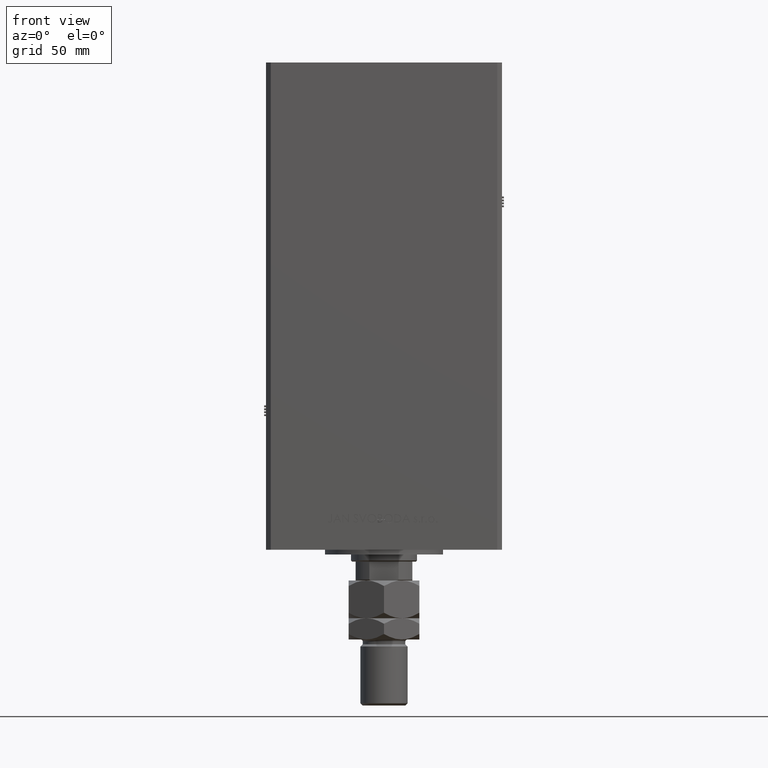
[diagram: clean part render]
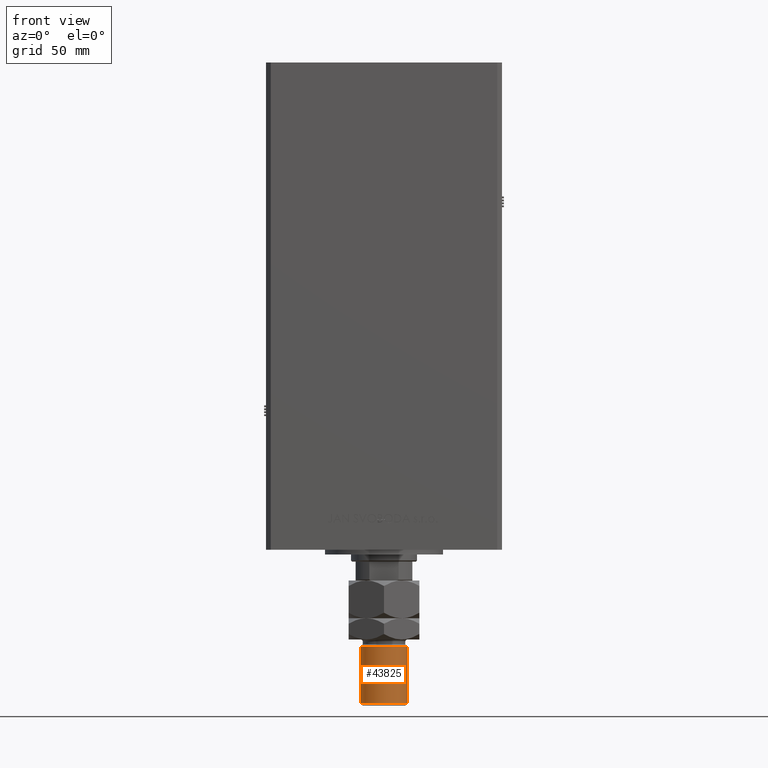
[diagram: same view with one face highlighted and labeled with its STEP entity id]
A machine part, front view. The second image highlights one B-rep face of the part: STEP entity #43825.
In plain terms, the highlighted cylindrical surface (edge-blend (fillet) strip) has radius 10 mm, axis along (0, -0, 1).
Its self-contained STEP definition (entity closure, byte-faithful):
#11 = VERTEX_POINT ( 'NONE', #38649 ) ;
#2349 = EDGE_LOOP ( 'NONE', ( #50576, #3099, #36775, #12514 ) ) ;
#2745 = CARTESIAN_POINT ( 'NONE',  ( -10.00000000000000000, 0.000000000000000000, 53.00000000000000711 ) ) ;
#3099 = ORIENTED_EDGE ( 'NONE', *, *, #49376, .T. ) ;
#3618 = DIRECTION ( 'NONE',  ( -0.000000000000000000, -0.000000000000000000, 1.000000000000000000 ) ) ;
#5961 = VERTEX_POINT ( 'NONE', #37063 ) ;
#6857 = CARTESIAN_POINT ( 'NONE',  ( 10.00000000000000000, 1.224646799147353059E-15, 52.00000000000004974 ) ) ;
#7308 = CIRCLE ( 'NONE', #42873, 10.00000000000000000 ) ;
#10063 = VERTEX_POINT ( 'NONE', #22826 ) ;
#10108 = CYLINDRICAL_SURFACE ( 'NONE', #25419, 10.00000000000000000 ) ;
#12514 = ORIENTED_EDGE ( 'NONE', *, *, #33720, .T. ) ;
#17098 = DIRECTION ( 'NONE',  ( -0.000000000000000000, -0.000000000000000000, -1.000000000000000000 ) ) ;
#18530 = CIRCLE ( 'NONE', #32415, 10.00000000000000000 ) ;
#20283 = VERTEX_POINT ( 'NONE', #6857 ) ;
#21615 = DIRECTION ( 'NONE',  ( -0.000000000000000000, -0.000000000000000000, -1.000000000000000000 ) ) ;
#22826 = CARTESIAN_POINT ( 'NONE',  ( 10.00000000000000000, 1.224646799147353059E-15, 28.00000000000002487 ) ) ;
#23172 = EDGE_CURVE ( 'NONE', #5961, #11, #31555, .T. ) ;
#24775 = DIRECTION ( 'NONE',  ( 0.000000000000000000, 0.000000000000000000, -1.000000000000000000 ) ) ;
#25419 = AXIS2_PLACEMENT_3D ( 'NONE', #45809, #21615, #35129 ) ;
#26087 = VECTOR ( 'NONE', #43508, 1000.000000000000000 ) ;
#31555 = LINE ( 'NONE', #2745, #26087 ) ;
#32415 = AXIS2_PLACEMENT_3D ( 'NONE', #52593, #3618, #37033 ) ;
#33720 = EDGE_CURVE ( 'NONE', #11, #10063, #18530, .T. ) ;
#35129 = DIRECTION ( 'NONE',  ( -1.000000000000000000, 0.000000000000000000, 0.000000000000000000 ) ) ;
#36775 = ORIENTED_EDGE ( 'NONE', *, *, #23172, .T. ) ;
#37033 = DIRECTION ( 'NONE',  ( 1.000000000000000000, 0.000000000000000000, 0.000000000000000000 ) ) ;
#37063 = CARTESIAN_POINT ( 'NONE',  ( -10.00000000000000000, 0.000000000000000000, 52.00000000000004974 ) ) ;
#38649 = CARTESIAN_POINT ( 'NONE',  ( -10.00000000000000000, 0.000000000000000000, 28.00000000000002487 ) ) ;
#40312 = DIRECTION ( 'NONE',  ( 1.000000000000000000, 0.000000000000000000, 0.000000000000000000 ) ) ;
#41843 = CARTESIAN_POINT ( 'NONE',  ( 10.00000000000000000, 1.224646799147353059E-15, 53.00000000000000711 ) ) ;
#42266 = FACE_OUTER_BOUND ( 'NONE', #2349, .T. ) ;
#42369 = LINE ( 'NONE', #41843, #43894 ) ;
#42873 = AXIS2_PLACEMENT_3D ( 'NONE', #53102, #24775, #40312 ) ;
#43508 = DIRECTION ( 'NONE',  ( -0.000000000000000000, -0.000000000000000000, -1.000000000000000000 ) ) ;
#43825 = ADVANCED_FACE ( 'NONE', ( #42266 ), #10108, .T. ) ;
#43894 = VECTOR ( 'NONE', #17098, 1000.000000000000000 ) ;
#45809 = CARTESIAN_POINT ( 'NONE',  ( 0.000000000000000000, 0.000000000000000000, 53.00000000000000711 ) ) ;
#49376 = EDGE_CURVE ( 'NONE', #20283, #5961, #7308, .T. ) ;
#50576 = ORIENTED_EDGE ( 'NONE', *, *, #51823, .F. ) ;
#51823 = EDGE_CURVE ( 'NONE', #20283, #10063, #42369, .T. ) ;
#52593 = CARTESIAN_POINT ( 'NONE',  ( 0.000000000000000000, 0.000000000000000000, 28.00000000000002487 ) ) ;
#53102 = CARTESIAN_POINT ( 'NONE',  ( 0.000000000000000000, 0.000000000000000000, 52.00000000000004974 ) ) ;